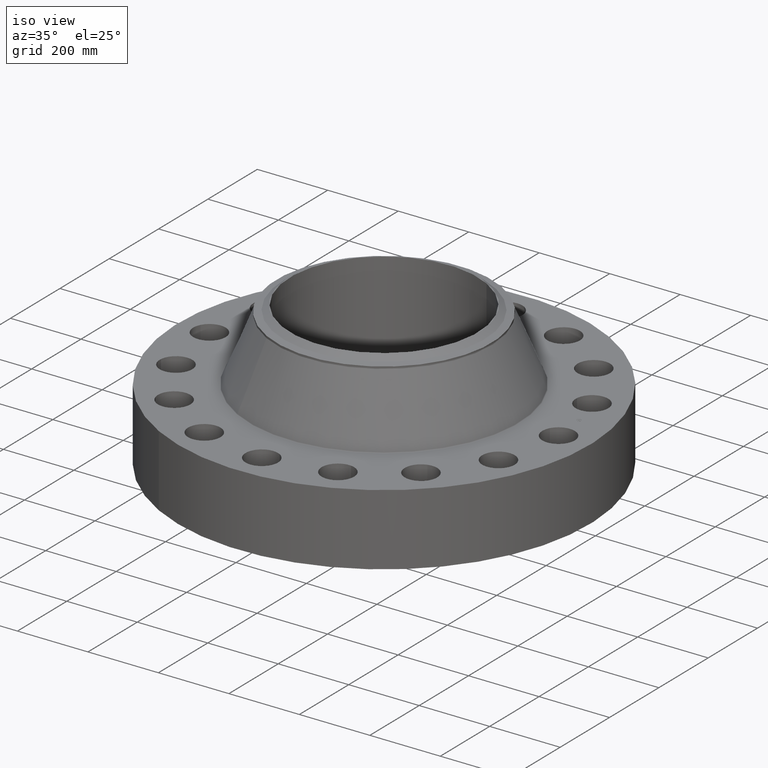
[diagram: clean part render]
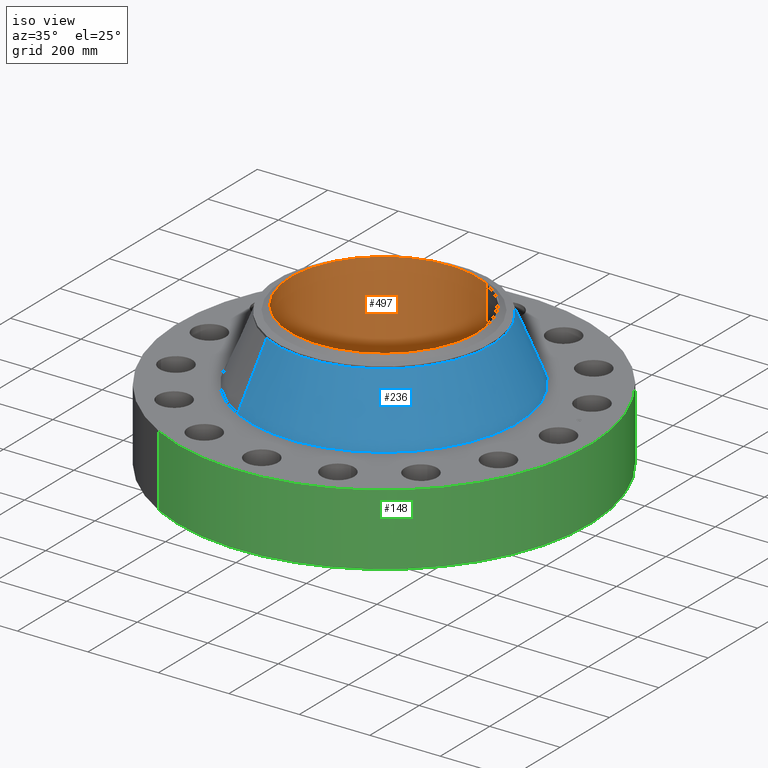
[diagram: same view with three faces highlighted in distinct colors, each labeled with its STEP entity id]
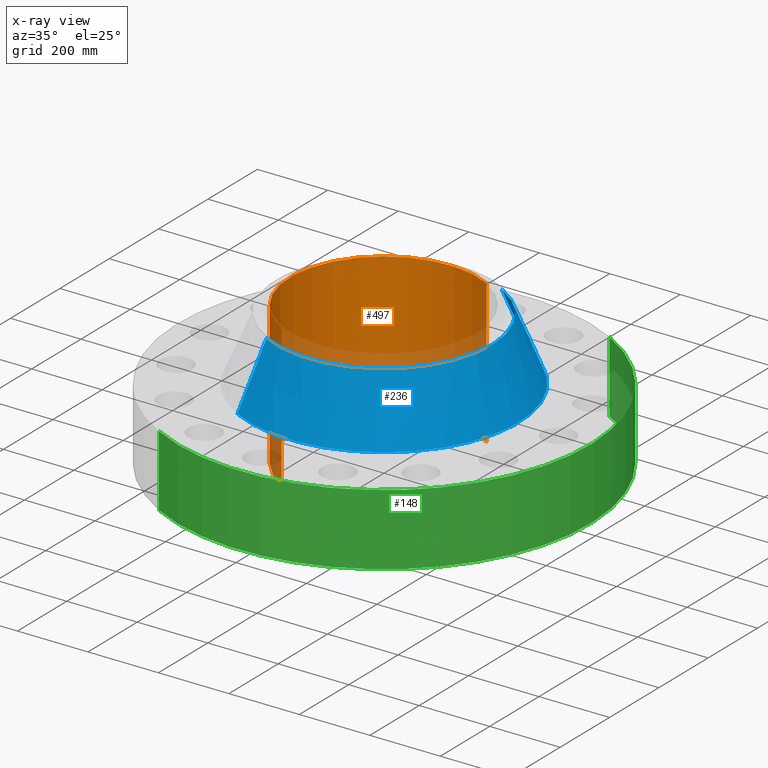
[diagram: x-ray of the same camera — body ghosted, the three highlighted faces saturated]
A machine part, iso view with three faces highlighted in distinct colors.
The next image is the same camera in x-ray (body ghosted, the three faces saturated) — at least one of them is partly hidden behind the body in this view.
Their STEP definitions:

[orange] entity #497 — the highlighted cylindrical surface (partial cylindrical patch) has radius 265.913 mm, axis along (0, 0, -1).
#435=AXIS2_PLACEMENT_3D('Circle Axis2P3D',#433,#434,$) ;
#470=AXIS2_PLACEMENT_3D('Cylinder Axis2P3D',#467,#468,#469) ;
#481=AXIS2_PLACEMENT_3D('Circle Axis2P3D',#479,#480,$) ;
#433=CARTESIAN_POINT('Axis2P3D Location',(0.,0.,16.0000000001)) ;
#437=CARTESIAN_POINT('Vertex',(-5.01910596367,-9.18741184047,16.0000000001)) ;
#439=CARTESIAN_POINT('Vertex',(5.01910596367,9.18741184047,16.0000000001)) ;
#467=CARTESIAN_POINT('Axis2P3D Location',(0.,0.,8.00000000003)) ;
#472=CARTESIAN_POINT('Line Origine',(-5.01910596367,-9.18741184047,8.00000000003)) ;
#476=CARTESIAN_POINT('Vertex',(-5.01910596367,-9.18741184047,-8.95171950564E-014)) ;
#479=CARTESIAN_POINT('Axis2P3D Location',(0.,0.,-8.95171950564E-014)) ;
#483=CARTESIAN_POINT('Vertex',(5.01910596367,9.18741184047,-8.95171950564E-014)) ;
#486=CARTESIAN_POINT('Line Origine',(5.01910596367,9.18741184047,8.00000000003)) ;
#434=DIRECTION('Axis2P3D Direction',(0.,0.,-0.0393700787402)) ;
#468=DIRECTION('Axis2P3D Direction',(0.,0.,-0.0393700787402)) ;
#469=DIRECTION('Axis2P3D XDirection',(0.0188750212049,0.0345504945626,0.)) ;
#473=DIRECTION('Vector Direction',(0.,0.,-0.0393700787402)) ;
#480=DIRECTION('Axis2P3D Direction',(0.,0.,-0.0393700787402)) ;
#487=DIRECTION('Vector Direction',(0.,0.,-0.0393700787402)) ;
#474=VECTOR('Line Direction',#473,0.0393700787402) ;
#488=VECTOR('Line Direction',#487,0.0393700787402) ;
#492=ORIENTED_EDGE('',*,*,#441,.F.) ;
#493=ORIENTED_EDGE('',*,*,#478,.T.) ;
#494=ORIENTED_EDGE('',*,*,#485,.T.) ;
#495=ORIENTED_EDGE('',*,*,#490,.F.) ;
#497=ADVANCED_FACE('PartBody',(#496),#471,.F.) ;
#436=CIRCLE('generated circle',#435,10.469) ;
#482=CIRCLE('generated circle',#481,10.469) ;
#471=CYLINDRICAL_SURFACE('generated cylinder',#470,10.469) ;
#441=EDGE_CURVE('',#438,#440,#436,.T.) ;
#478=EDGE_CURVE('',#438,#477,#475,.T.) ;
#485=EDGE_CURVE('',#477,#484,#482,.T.) ;
#490=EDGE_CURVE('',#440,#484,#489,.T.) ;
#491=EDGE_LOOP('',(#492,#493,#494,#495)) ;
#496=FACE_OUTER_BOUND('',#491,.T.) ;
#475=LINE('Line',#472,#474) ;
#489=LINE('Line',#486,#488) ;
#438=VERTEX_POINT('',#437) ;
#440=VERTEX_POINT('',#439) ;
#477=VERTEX_POINT('',#476) ;
#484=VERTEX_POINT('',#483) ;

[blue] entity #236 — the highlighted conical surface has half-angle 22.871 deg.
#172=AXIS2_PLACEMENT_3D('Circle Axis2P3D',#170,#171,$) ;
#209=AXIS2_PLACEMENT_3D('Cone Axis2P3D',#206,#207,#208) ;
#220=AXIS2_PLACEMENT_3D('Circle Axis2P3D',#218,#219,$) ;
#167=CARTESIAN_POINT('Vertex',(7.17654728229,13.1365816845,8.07336175556)) ;
#170=CARTESIAN_POINT('Axis2P3D Location',(0.,0.,8.07336175556)) ;
#174=CARTESIAN_POINT('Vertex',(-7.17654728229,-13.1365816845,8.07336175556)) ;
#206=CARTESIAN_POINT('Axis2P3D Location',(0.,0.,15.1121557484)) ;
#211=CARTESIAN_POINT('Line Origine',(6.46482687278,11.8337862136,11.592758752)) ;
#215=CARTESIAN_POINT('Vertex',(5.75310646327,10.5309907427,15.1121557484)) ;
#218=CARTESIAN_POINT('Axis2P3D Location',(0.,0.,15.1121557484)) ;
#222=CARTESIAN_POINT('Vertex',(-5.75310646327,-10.5309907427,15.1121557484)) ;
#225=CARTESIAN_POINT('Line Origine',(-6.46482687278,-11.8337862136,11.592758752)) ;
#171=DIRECTION('Axis2P3D Direction',(0.,0.,-0.0393700787402)) ;
#207=DIRECTION('Axis2P3D Direction',(0.,0.,-0.0393700787402)) ;
#208=DIRECTION('Axis2P3D XDirection',(-0.0188750212049,-0.0345504945626,0.)) ;
#212=DIRECTION('Vector Direction',(0.00733581544451,0.0134281200999,-0.0362749845259)) ;
#219=DIRECTION('Axis2P3D Direction',(0.,0.,-0.0393700787402)) ;
#226=DIRECTION('Vector Direction',(-0.00733581544451,-0.0134281200999,-0.0362749845259)) ;
#213=VECTOR('Line Direction',#212,0.0393700787402) ;
#227=VECTOR('Line Direction',#226,0.0393700787402) ;
#231=ORIENTED_EDGE('',*,*,#176,.F.) ;
#232=ORIENTED_EDGE('',*,*,#217,.T.) ;
#233=ORIENTED_EDGE('',*,*,#224,.T.) ;
#234=ORIENTED_EDGE('',*,*,#229,.F.) ;
#236=ADVANCED_FACE('PartBody',(#235),#210,.T.) ;
#173=CIRCLE('generated circle',#172,14.9690550553) ;
#221=CIRCLE('generated circle',#220,12.) ;
#210=CONICAL_SURFACE('Cone',#209,12.,0.399168165389) ;
#176=EDGE_CURVE('',#168,#175,#173,.T.) ;
#217=EDGE_CURVE('',#168,#216,#214,.F.) ;
#224=EDGE_CURVE('',#216,#223,#221,.T.) ;
#229=EDGE_CURVE('',#175,#223,#228,.F.) ;
#230=EDGE_LOOP('',(#231,#232,#233,#234)) ;
#235=FACE_OUTER_BOUND('',#230,.T.) ;
#214=LINE('Line',#211,#213) ;
#228=LINE('Line',#225,#227) ;
#168=VERTEX_POINT('',#167) ;
#175=VERTEX_POINT('',#174) ;
#216=VERTEX_POINT('',#215) ;
#223=VERTEX_POINT('',#222) ;

[green] entity #148 — the highlighted cylindrical surface (partial cylindrical patch) has radius 584.2 mm, axis along (0, 0, -1).
#95=AXIS2_PLACEMENT_3D('Cylinder Axis2P3D',#92,#93,#94) ;
#134=AXIS2_PLACEMENT_3D('Circle Axis2P3D',#132,#133,$) ;
#139=AXIS2_PLACEMENT_3D('Circle Axis2P3D',#137,#138,$) ;
#92=CARTESIAN_POINT('Axis2P3D Location',(0.,0.,8.00000000003)) ;
#101=CARTESIAN_POINT('Vertex',(-11.0267873879,-20.1843989236,3.35689481461E-015)) ;
#103=CARTESIAN_POINT('Vertex',(11.0267873879,20.1843989236,3.35689481461E-015)) ;
#106=CARTESIAN_POINT('Line Origine',(-11.0267873879,-20.1843989236,4.00000000002)) ;
#110=CARTESIAN_POINT('Vertex',(-11.0267873879,-20.1843989236,8.00000000003)) ;
#117=CARTESIAN_POINT('Vertex',(11.0267873879,20.1843989236,8.00000000003)) ;
#120=CARTESIAN_POINT('Line Origine',(11.0267873879,20.1843989236,4.00000000002)) ;
#132=CARTESIAN_POINT('Axis2P3D Location',(0.,0.,2.23792987641E-015)) ;
#137=CARTESIAN_POINT('Axis2P3D Location',(0.,0.,8.00000000003)) ;
#93=DIRECTION('Axis2P3D Direction',(0.,0.,-0.0393700787402)) ;
#94=DIRECTION('Axis2P3D XDirection',(0.0188750212049,0.0345504945626,0.)) ;
#107=DIRECTION('Vector Direction',(0.,0.,-0.0393700787402)) ;
#121=DIRECTION('Vector Direction',(0.,0.,-0.0393700787402)) ;
#133=DIRECTION('Axis2P3D Direction',(0.,0.,-0.0393700787402)) ;
#138=DIRECTION('Axis2P3D Direction',(0.,0.,-0.0393700787402)) ;
#108=VECTOR('Line Direction',#107,0.0393700787402) ;
#122=VECTOR('Line Direction',#121,0.0393700787402) ;
#143=ORIENTED_EDGE('',*,*,#136,.F.) ;
#144=ORIENTED_EDGE('',*,*,#124,.T.) ;
#145=ORIENTED_EDGE('',*,*,#141,.T.) ;
#146=ORIENTED_EDGE('',*,*,#112,.F.) ;
#148=ADVANCED_FACE('PartBody',(#147),#96,.T.) ;
#135=CIRCLE('generated circle',#134,23.0000000001) ;
#140=CIRCLE('generated circle',#139,23.0000000001) ;
#96=CYLINDRICAL_SURFACE('generated cylinder',#95,23.0000000001) ;
#112=EDGE_CURVE('',#102,#111,#109,.F.) ;
#124=EDGE_CURVE('',#104,#118,#123,.F.) ;
#136=EDGE_CURVE('',#104,#102,#135,.T.) ;
#141=EDGE_CURVE('',#118,#111,#140,.T.) ;
#142=EDGE_LOOP('',(#143,#144,#145,#146)) ;
#147=FACE_OUTER_BOUND('',#142,.T.) ;
#109=LINE('Line',#106,#108) ;
#123=LINE('Line',#120,#122) ;
#102=VERTEX_POINT('',#101) ;
#104=VERTEX_POINT('',#103) ;
#111=VERTEX_POINT('',#110) ;
#118=VERTEX_POINT('',#117) ;